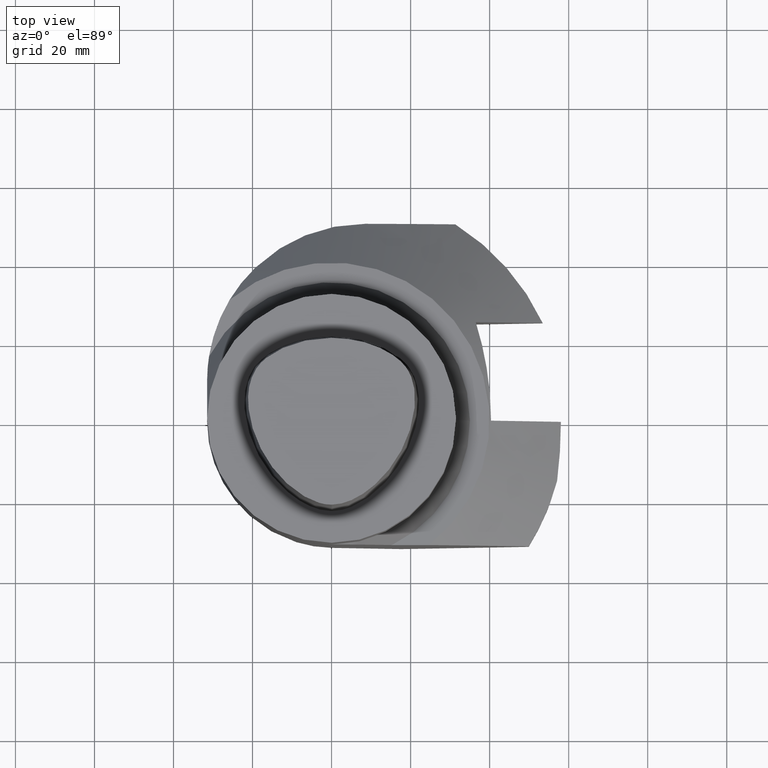
[diagram: clean part render]
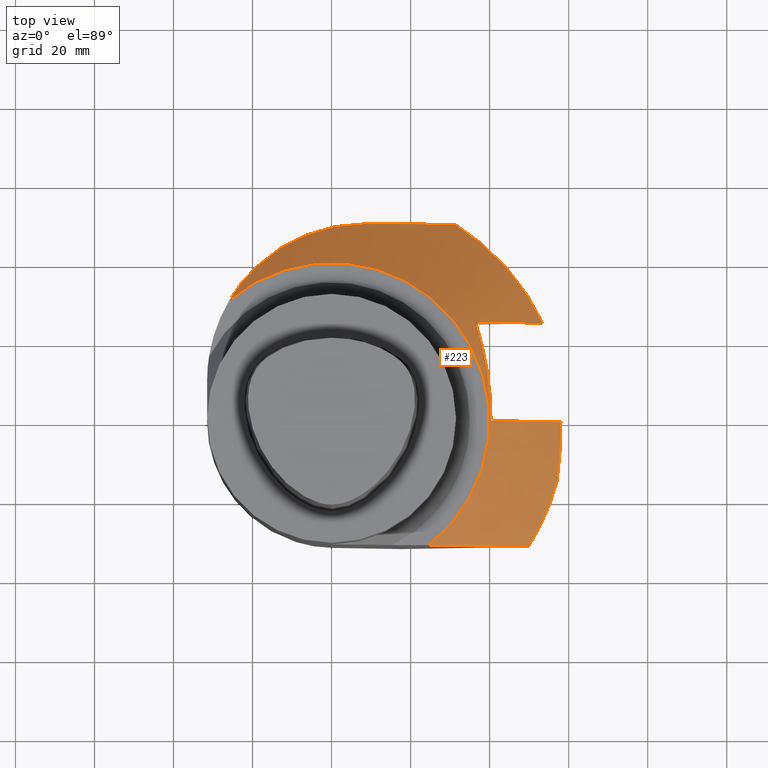
[diagram: same view with one face highlighted and labeled with its STEP entity id]
A machine part, top view. The second image highlights one B-rep face of the part: STEP entity #223.
In plain terms, the highlighted conical surface has half-angle 45 deg.
Its self-contained STEP definition (entity closure, byte-faithful):
#143=EDGE_CURVE('240[2]',#373,#374,#375,.F.);
#147=EDGE_CURVE('240[2]',#381,#382,#383,.T.);
#177=EDGE_CURVE('240[2]',#374,#427,#428,.F.);
#197=EDGE_CURVE('240[2]',#427,#389,#453,.F.);
#201=EDGE_CURVE('240[2]',#457,#382,#458,.T.);
#223=ADVANCED_FACE('240[2]',(#488),#489,.T.);
#229=EDGE_CURVE('240[2]',#408,#373,#496,.T.);
#238=EDGE_CURVE('240[2]',#506,#389,#507,.T.);
#245=EDGE_CURVE('240[2]',#457,#516,#517,.T.);
#255=EDGE_CURVE('240[2]',#529,#347,#530,.T.);
#271=EDGE_CURVE('240[2]',#516,#529,#549,.T.);
#278=EDGE_CURVE('240[2]',#480,#381,#558,.T.);
#286=EDGE_CURVE('240[2]',#408,#480,#567,.F.);
#293=EDGE_CURVE('240[2]',#347,#506,#575,.T.);
#347=VERTEX_POINT('',#711);
#373=VERTEX_POINT('',#834);
#374=VERTEX_POINT('',#835);
#375=B_SPLINE_CURVE_WITH_KNOTS('',2,(#836,#837,#838),.UNSPECIFIED.,.F.,.F.,(3,3),(985.061355170742,1019.57062740964),.UNSPECIFIED.);
#381=VERTEX_POINT('',#847);
#382=VERTEX_POINT('',#848);
#383=B_SPLINE_CURVE_WITH_KNOTS('',3,(#849,#850,#851,#852,#853,#854,#855,#856,#857,#858,#859,#860,#861,#862,#863,#864,#865,#866,#867,#868,#869,#870),.UNSPECIFIED.,.F.,.F.,(4,2,2,2,2,2,2,2,2,2,4),(71.7255659679901,75.2772523431442,80.3161785081814,84.8443937579859,89.3726090077905,93.900824257595,98.4290395073995,102.957254757204,107.485470007009,112.013685256813,112.970404078038),.UNSPECIFIED.);
#389=VERTEX_POINT('',#878);
#408=VERTEX_POINT('',#907);
#427=VERTEX_POINT('',#936);
#428=B_SPLINE_CURVE_WITH_KNOTS('',2,(#937,#938,#939),.UNSPECIFIED.,.F.,.F.,(3,3),(886.092693693866,924.547877226166),.UNSPECIFIED.);
#453=B_SPLINE_CURVE_WITH_KNOTS('',3,(#973,#974,#975,#976),.UNSPECIFIED.,.F.,.F.,(4,4),(14060.0608776765,14085.0608776765),.UNSPECIFIED.);
#457=VERTEX_POINT('',#983);
#458=CIRCLE('',#984,40.0000000000001);
#480=VERTEX_POINT('',#1013);
#488=FACE_OUTER_BOUND('',#1024,.T.);
#489=CONICAL_SURFACE('',#1025,41.4644660940674,0.785398163397474);
#496=(B_SPLINE_CURVE(2,(#1038,#1039,#1040),.UNSPECIFIED.,.F.,.F.)B_SPLINE_CURVE_WITH_KNOTS((3,3),(430.565284395796,570.39059582448),.UNSPECIFIED.)RATIONAL_B_SPLINE_CURVE((10.9310820768153,12.206624253755,13.2632806352174))BOUNDED_CURVE()REPRESENTATION_ITEM('')GEOMETRIC_REPRESENTATION_ITEM()CURVE());
#506=VERTEX_POINT('',#1069);
#507=B_SPLINE_CURVE_WITH_KNOTS('',3,(#1070,#1071,#1072,#1073,#1074,#1075,#1076,#1077,#1078,#1079,#1080,#1081),.UNSPECIFIED.,.F.,.F.,(4,3,2,3,4),(571.758637574642,577.753720463706,612.689084357925,635.473788164669,635.870919981259),.UNSPECIFIED.);
#516=VERTEX_POINT('',#1094);
#517=(B_SPLINE_CURVE(2,(#1096,#1097,#1098),.UNSPECIFIED.,.F.,.F.)B_SPLINE_CURVE_WITH_KNOTS((3,3),(1469.39773661616,1634.30696098478),.UNSPECIFIED.)RATIONAL_B_SPLINE_CURVE((11.3560907714777,10.7051554606095,9.77767348147329))BOUNDED_CURVE()REPRESENTATION_ITEM('')GEOMETRIC_REPRESENTATION_ITEM()CURVE());
#529=VERTEX_POINT('',#1135);
#530=(B_SPLINE_CURVE(2,(#1137,#1138,#1139),.UNSPECIFIED.,.F.,.F.)B_SPLINE_CURVE_WITH_KNOTS((3,3),(970.486333217665,1001.73575471),.UNSPECIFIED.)RATIONAL_B_SPLINE_CURVE((5.58289391319489,5.39208445089301,5.1842352977651))BOUNDED_CURVE()REPRESENTATION_ITEM('')GEOMETRIC_REPRESENTATION_ITEM()CURVE());
#549=(B_SPLINE_CURVE(2,(#1182,#1183,#1184),.UNSPECIFIED.,.F.,.F.)B_SPLINE_CURVE_WITH_KNOTS((3,3),(2100.65765670613,2150.76210232924),.UNSPECIFIED.)RATIONAL_B_SPLINE_CURVE((12.4400586247719,12.1594705874613,11.8589891565199))BOUNDED_CURVE()REPRESENTATION_ITEM('')GEOMETRIC_REPRESENTATION_ITEM()CURVE());
#558=(B_SPLINE_CURVE(2,(#1204,#1205,#1206),.UNSPECIFIED.,.F.,.F.)B_SPLINE_CURVE_WITH_KNOTS((3,3),(854.329587288125,1117.775935939),.UNSPECIFIED.)RATIONAL_B_SPLINE_CURVE((8.65330460733729,9.20336781737734,9.36492237376256))BOUNDED_CURVE()REPRESENTATION_ITEM('')GEOMETRIC_REPRESENTATION_ITEM()CURVE());
#567=CIRCLE('',#1227,59.000000000001);
#575=CIRCLE('',#1239,59.0);
#711=CARTESIAN_POINT('',(49.8873731519312,-31.5,-52.0000003175876));
#834=CARTESIAN_POINT('',(36.4863361191743,25.0,-37.2295461371124));
#835=CARTESIAN_POINT('',(39.2514158446309,13.365189959665,-34.4644664116558));
#836=CARTESIAN_POINT('',(39.2514158446309,13.365189959665,-34.4644664116558));
#837=CARTESIAN_POINT('',(38.2881515985033,19.1825949797702,-35.4277306577833));
#838=CARTESIAN_POINT('',(36.4863361191743,25.0,-37.2295461371124));
#847=CARTESIAN_POINT('',(8.50000000000033,50.0,-43.7173543495168));
#848=CARTESIAN_POINT('',(-25.8146376714631,30.554942020745,-33.0000003175887));
#849=CARTESIAN_POINT('',(8.50000000000033,50.0,-43.7173543495168));
#850=CARTESIAN_POINT('',(7.30175205939586,50.0,-43.5165333940559));
#851=CARTESIAN_POINT('',(6.10916484803328,49.9460616176122,-43.3048316724511));
#852=CARTESIAN_POINT('',(3.2546987092878,49.6902089646262,-42.7692953897984));
#853=CARTESIAN_POINT('',(1.60543336279739,49.435570970164,-42.4355712877521));
#854=CARTESIAN_POINT('',(-1.44271767393705,48.7726995997495,-41.7726999173376));
#855=CARTESIAN_POINT('',(-2.88496268744508,48.3750794551383,-41.4389438825929));
#856=CARTESIAN_POINT('',(-5.73584178558584,47.4112938461002,-40.7345852308837));
#857=CARTESIAN_POINT('',(-7.14448128663803,46.845147080157,-40.3639789514747));
#858=CARTESIAN_POINT('',(-9.89804376660403,45.5503395747398,-39.5901254492403));
#859=CARTESIAN_POINT('',(-11.243141283143,44.8216124090913,-39.1868254107595));
#860=CARTESIAN_POINT('',(-13.8429325232637,43.2133961641545,-38.3526412132022));
#861=CARTESIAN_POINT('',(-15.097628102538,42.3339135835667,-37.9217503087568));
#862=CARTESIAN_POINT('',(-17.4932199172261,40.4414621037299,-37.0385009714125));
#863=CARTESIAN_POINT('',(-18.6353593123007,39.4275104796812,-36.5856769173314));
#864=CARTESIAN_POINT('',(-20.7884427060625,37.2854030920309,-35.6645832782901));
#865=CARTESIAN_POINT('',(-21.7993821571461,36.1572459002517,-35.1963063845833));
#866=CARTESIAN_POINT('',(-23.6749366654436,33.8123397259402,-34.2522208108605));
#867=CARTESIAN_POINT('',(-24.5396517785066,32.5954493675821,-33.776350939763));
#868=CARTESIAN_POINT('',(-25.4926265782557,31.0855005958616,-33.2006898935666));
#869=CARTESIAN_POINT('',(-25.6553813770361,30.8208061635213,-33.1003083158485));
#870=CARTESIAN_POINT('',(-25.8146376714631,30.554942020745,-33.0000003175887));
#878=CARTESIAN_POINT('',(58.0356104990133,-1.58684607746469E-014,-51.0356108166007));
#907=CARTESIAN_POINT('',(53.4415568635508,25.0,-52.0000003175885));
#936=CARTESIAN_POINT('',(40.3579409693491,-1.72424066370468E-014,-33.3579412869375));
#937=CARTESIAN_POINT('',(40.3579409693491,-1.72424066370468E-014,-33.3579412869375));
#938=CARTESIAN_POINT('',(40.3579409693491,6.68259497978929,-33.3579412869375));
#939=CARTESIAN_POINT('',(39.2514158446309,13.365189959665,-34.4644664116558));
#973=CARTESIAN_POINT('',(58.0356104990133,-1.58684607746469E-014,-51.0356108166007));
#974=CARTESIAN_POINT('',(52.1430539894146,-1.4483024796855E-014,-45.1430543070023));
#975=CARTESIAN_POINT('',(46.2504974794937,-1.8627842614967E-014,-39.2504977970817));
#976=CARTESIAN_POINT('',(40.3579409693491,-1.72424066370468E-014,-33.3579412869375));
#983=CARTESIAN_POINT('',(24.6525860712423,-31.5,-33.0000003175886));
#984=AXIS2_PLACEMENT_3D('',#1404,#1405,#1406);
#1013=CARTESIAN_POINT('',(31.3209195267337,50.0,-52.0000003175885));
#1024=EDGE_LOOP('',(#1450,#1451,#1452,#1453,#1454,#1455,#1456,#1457,#1458,#1459,#1460,#1461,#1462));
#1025=AXIS2_PLACEMENT_3D('',#1463,#1464,#1465);
#1038=CARTESIAN_POINT('',(53.4415568635508,25.0,-52.0000003175885));
#1039=CARTESIAN_POINT('',(43.7509395506531,24.9999999999999,-43.2223447892815));
#1040=CARTESIAN_POINT('',(36.4863361191743,25.0,-37.2295461371124));
#1069=CARTESIAN_POINT('',(57.0712209980263,-14.9624775286204,-52.0000003175876));
#1070=CARTESIAN_POINT('',(53.7612951628419,-31.5000000000001,-55.309926152772));
#1071=CARTESIAN_POINT('',(54.0192949037378,-30.5493223827614,-55.0519264118762));
#1072=CARTESIAN_POINT('',(54.2656149027749,-29.5986447655463,-54.8056064128391));
#1073=CARTESIAN_POINT('',(54.5002551599532,-28.6479671483547,-54.5709661556607));
#1074=CARTESIAN_POINT('',(55.867582838393,-23.1080489992225,-53.2036384772209));
#1075=CARTESIAN_POINT('',(56.872186593584,-17.430813040582,-52.1990347220299));
#1076=CARTESIAN_POINT('',(57.8332239078954,-7.83197006054234,-51.2379974077185));
#1077=CARTESIAN_POINT('',(58.0288475712041,-4.02490644169865,-51.0423737444099));
#1078=CARTESIAN_POINT('',(58.0354381910129,-0.200000000000013,-51.0357831246011));
#1079=CARTESIAN_POINT('',(58.0355530639047,-0.133332815894448,-51.0356682517092));
#1080=CARTESIAN_POINT('',(58.0356104990133,-0.066666149225772,-51.0356108166007));
#1081=CARTESIAN_POINT('',(58.0356104990133,-1.58684607746469E-014,-51.0356108166007));
#1094=CARTESIAN_POINT('',(40.7965518519409,-31.5,-44.5422998686177));
#1096=CARTESIAN_POINT('',(24.6525860712423,-31.5,-33.0000003175886));
#1097=CARTESIAN_POINT('',(31.7067963586732,-31.4999999999999,-37.3476134744765));
#1098=CARTESIAN_POINT('',(40.7965518519409,-31.5,-44.5422998686177));
#1135=CARTESIAN_POINT('',(45.8296668694695,-31.5,-48.6112254917064));
#1137=CARTESIAN_POINT('',(45.8296668694695,-31.5,-48.6112254917064));
#1138=CARTESIAN_POINT('',(49.5701965644849,-31.5,-51.693826698588));
#1139=CARTESIAN_POINT('',(53.7612951628419,-31.5000000000001,-55.309926152772));
#1182=CARTESIAN_POINT('',(40.7965518519386,-31.5000000000001,-44.5422998686158));
#1183=CARTESIAN_POINT('',(43.2175484787115,-31.5000000000001,-46.4585572975208));
#1184=CARTESIAN_POINT('',(45.8296668694302,-31.5000000000001,-48.6112254916739));
#1204=CARTESIAN_POINT('',(31.3209195267337,50.0,-52.0000003175885));
#1205=CARTESIAN_POINT('',(19.0490755330685,50.0000000000001,-45.4853318740261));
#1206=CARTESIAN_POINT('',(8.50000000000033,50.0,-43.7173543495168));
#1227=AXIS2_PLACEMENT_3D('',#1550,#1551,#1552);
#1239=AXIS2_PLACEMENT_3D('',#1562,#1563,#1564);
#1404=CARTESIAN_POINT('',(7.5305631693066E-014,-2.02066723803985E-015,-33.0000003175887));
#1405=DIRECTION('',(-2.28198881722218E-015,6.12323399573681E-017,1.0));
#1406=DIRECTION('',(1.0,-1.83697019872103E-016,2.28198881722218E-015));
#1450=ORIENTED_EDGE('',*,*,#293,.T.);
#1451=ORIENTED_EDGE('',*,*,#238,.T.);
#1452=ORIENTED_EDGE('',*,*,#197,.F.);
#1453=ORIENTED_EDGE('',*,*,#177,.F.);
#1454=ORIENTED_EDGE('',*,*,#143,.F.);
#1455=ORIENTED_EDGE('',*,*,#229,.F.);
#1456=ORIENTED_EDGE('',*,*,#286,.T.);
#1457=ORIENTED_EDGE('',*,*,#278,.T.);
#1458=ORIENTED_EDGE('',*,*,#147,.T.);
#1459=ORIENTED_EDGE('',*,*,#201,.F.);
#1460=ORIENTED_EDGE('',*,*,#245,.T.);
#1461=ORIENTED_EDGE('',*,*,#271,.T.);
#1462=ORIENTED_EDGE('',*,*,#255,.T.);
#1463=CARTESIAN_POINT('',(7.8647526942928E-014,-2.11033992376781E-015,-34.4644664116559));
#1464=DIRECTION('',(2.28198881722218E-015,-6.12323399573681E-017,-1.0));
#1465=DIRECTION('',(1.0,-1.83697019872103E-016,2.28198881722218E-015));
#1550=CARTESIAN_POINT('',(1.18663419220287E-013,-3.18408169722983E-015,-52.0000003175886));
#1551=DIRECTION('',(2.28198881722218E-015,-6.12323399573681E-017,-1.0));
#1552=DIRECTION('',(-1.0,1.83697019872103E-016,-2.28198881722218E-015));
#1562=CARTESIAN_POINT('',(2.48899307322997E-013,-6.67868610316302E-015,-52.0000003175876));
#1563=DIRECTION('',(0.0,0.0,1.0));
#1564=DIRECTION('',(1.0,-0.0,0.0));